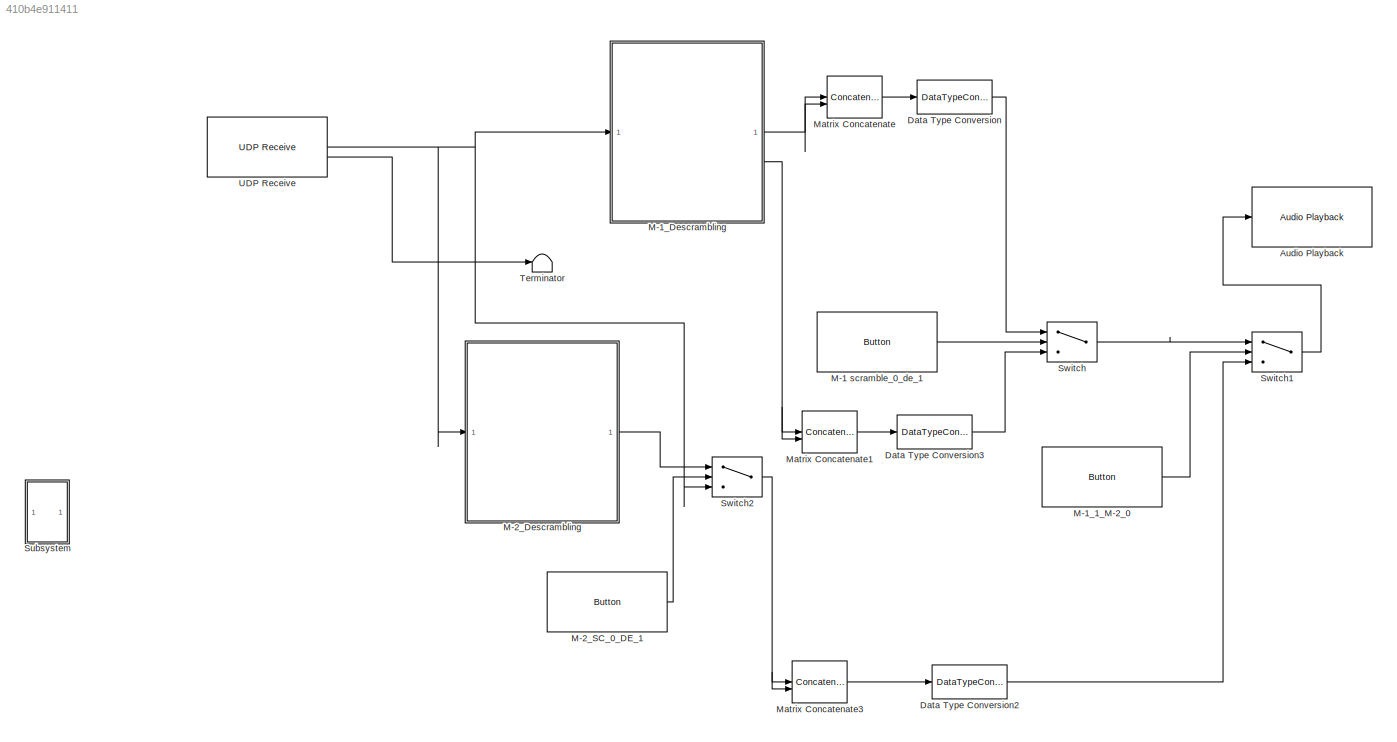
MODEL slx_410b4e911411
KIND model
CONFIG AbsTol = auto
CONFIG EnableMultiTasking = off
CONFIG FixedStep = auto
CONFIG MaxStep = auto
CONFIG MinStep = auto
CONFIG RelTol = 1e-3
CONFIG SampleTimeConstraint = Unconstrained
CONFIG SolverName = FixedStepAuto
CONFIG StartTime = 0.0
CONFIG StopTime = 10.0
BLOCK [Reference] Audio Playback  REF=androidaudiovideolib/Audio Playback
  SourceBlock = androidaudiovideolib/Audio Playback
  SourceType = codertarget.internal.androidAudioPlayback
BLOCK [DataTypeConversion] Data Type Conversion
  OutDataTypeStr = int16
  RndMeth = Floor
  SaturateOnIntegerOverflow = off
BLOCK [DataTypeConversion] Data Type Conversion2
  OutDataTypeStr = int16
  RndMeth = Floor
  SaturateOnIntegerOverflow = off
BLOCK [DataTypeConversion] Data Type Conversion3
  OutDataTypeStr = int16
  RndMeth = Floor
  SaturateOnIntegerOverflow = off
BLOCK [Reference] M-1 scramble_0_de_1  REF=androiduilib/Button
  SourceBlock = androiduilib/Button
  SourceType = codertarget.internal.androidButton
BLOCK [Reference] M-1_1_M-2_0  REF=androiduilib/Button
  SourceBlock = androiduilib/Button
  SourceType = codertarget.internal.androidButton
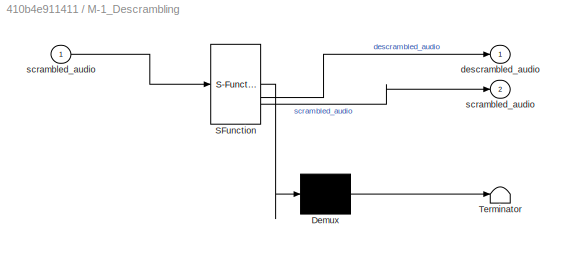
BLOCK [SubSystem] M-1_Descrambling
  ErrorFcn = Stateflow.Translate.translate
  LibrarySourceBlock = simulink/User-Defined\nFunctions/MATLAB Function
  PermitHierarchicalResolution = ExplicitOnly
  SFBlockType = MATLAB Function
  TreatAsAtomicUnit = on
BLOCK [Demux] M-1_Descrambling/ Demux 
  Outputs = 1
BLOCK [S-Function] M-1_Descrambling/ SFunction 
  EnableBusSupport = on
  FunctionName = sf_sfun
  PortCounts = [1 3]
  SFcnIsStateOwnerBlock = off
  SFunctionDeploymentMode = off
  Tag = Stateflow S-Function 2
BLOCK [Terminator] M-1_Descrambling/ Terminator 
BLOCK [Outport] M-1_Descrambling/descrambled_audio
BLOCK [Outport] M-1_Descrambling/scrambled_audio
  Port = 2
BLOCK [Inport] M-1_Descrambling/scrambled_audio 
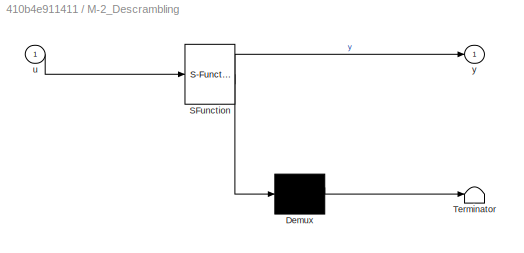
BLOCK [SubSystem] M-2_Descrambling
  ErrorFcn = Stateflow.Translate.translate
  LibrarySourceBlock = simulink/User-Defined\nFunctions/MATLAB Function
  PermitHierarchicalResolution = ExplicitOnly
  SFBlockType = MATLAB Function
  TreatAsAtomicUnit = on
BLOCK [Demux] M-2_Descrambling/ Demux 
  Outputs = 1
BLOCK [S-Function] M-2_Descrambling/ SFunction 
  EnableBusSupport = on
  FunctionName = sf_sfun
  PortCounts = [1 2]
  SFcnIsStateOwnerBlock = off
  SFunctionDeploymentMode = off
  Tag = Stateflow S-Function 1
BLOCK [Terminator] M-2_Descrambling/ Terminator 
BLOCK [Inport] M-2_Descrambling/u
BLOCK [Outport] M-2_Descrambling/y
BLOCK [Reference] M-2_SC_0_DE_1  REF=androiduilib/Button
  SourceBlock = androiduilib/Button
  SourceType = codertarget.internal.androidButton
BLOCK [Concatenate] Matrix Concatenate
  ConcatenateDimension = 2
  Mode = Multidimensional array
BLOCK [Concatenate] Matrix Concatenate1
  ConcatenateDimension = 2
  Mode = Multidimensional array
BLOCK [Concatenate] Matrix Concatenate3
  ConcatenateDimension = 2
  Mode = Multidimensional array
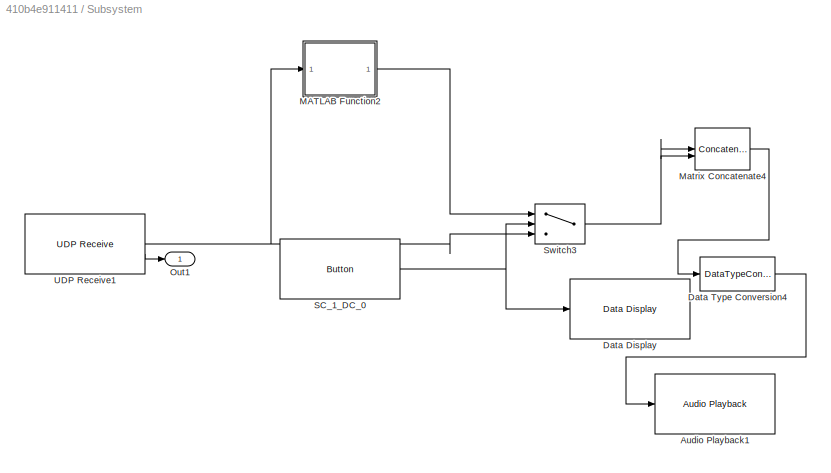
BLOCK [SubSystem] Subsystem
  Commented = on
BLOCK [Reference] Subsystem/Audio Playback1  REF=androidaudiovideolib/Audio Playback
  Commented = on
  SourceBlock = androidaudiovideolib/Audio Playback
  SourceType = codertarget.internal.androidAudioPlayback
BLOCK [Reference] Subsystem/Data Display  REF=androiduilib/Data Display
  Commented = on
  SourceBlock = androiduilib/Data Display
  SourceType = codertarget.internal.androidDataDisplay
BLOCK [DataTypeConversion] Subsystem/Data Type Conversion4
  Commented = on
  OutDataTypeStr = int16
  RndMeth = Floor
  SaturateOnIntegerOverflow = off
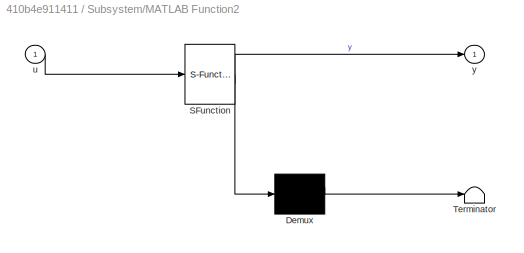
BLOCK [SubSystem] Subsystem/MATLAB Function2
  Commented = on
  ErrorFcn = Stateflow.Translate.translate
  LibrarySourceBlock = simulink/User-Defined\nFunctions/MATLAB Function
  PermitHierarchicalResolution = ExplicitOnly
  SFBlockType = MATLAB Function
  TreatAsAtomicUnit = on
BLOCK [Demux] Subsystem/MATLAB Function2/ Demux 
  Outputs = 1
BLOCK [S-Function] Subsystem/MATLAB Function2/ SFunction 
  EnableBusSupport = on
  FunctionName = sf_sfun
  PortCounts = [1 2]
  SFcnIsStateOwnerBlock = off
  SFunctionDeploymentMode = off
  Tag = Stateflow S-Function 3
BLOCK [Terminator] Subsystem/MATLAB Function2/ Terminator 
BLOCK [Inport] Subsystem/MATLAB Function2/u
BLOCK [Outport] Subsystem/MATLAB Function2/y
BLOCK [Concatenate] Subsystem/Matrix Concatenate4
  Commented = on
  ConcatenateDimension = 2
  Mode = Multidimensional array
BLOCK [Outport] Subsystem/Out1
BLOCK [Reference] Subsystem/SC_1_DC_0  REF=androiduilib/Button
  Commented = on
  SourceBlock = androiduilib/Button
  SourceType = codertarget.internal.androidButton
BLOCK [Switch] Subsystem/Switch3
  Commented = on
  Criteria = u2 > Threshold
  InputSameDT = off
  SaturateOnIntegerOverflow = off
BLOCK [Reference] Subsystem/UDP Receive1  REF=androidcommunicationlib/UDP Receive
  Commented = on
  SourceBlock = androidcommunicationlib/UDP Receive
  SourceType = UDP Receive
BLOCK [Switch] Switch
  Criteria = u2 > Threshold
  InputSameDT = off
  SaturateOnIntegerOverflow = off
BLOCK [Switch] Switch1
  Criteria = u2 > Threshold
  InputSameDT = off
  SaturateOnIntegerOverflow = off
BLOCK [Switch] Switch2
  Criteria = u2 > Threshold
  InputSameDT = off
  SaturateOnIntegerOverflow = off
BLOCK [Terminator] Terminator
BLOCK [Reference] UDP Receive  REF=androidcommunicationlib/UDP Receive
  SourceBlock = androidcommunicationlib/UDP Receive
  SourceType = UDP Receive
LINE Data Type Conversion2:1 -> Switch1:3
LINE Data Type Conversion3:1 -> Switch:3
LINE Data Type Conversion:1 -> Switch:1
LINE M-1 scramble_0_de_1:1 -> Switch:2
LINE M-1_1_M-2_0:1 -> Switch1:2
NET M-1_Descrambling:1 -> Matrix Concatenate:1, Matrix Concatenate:2
NET M-1_Descrambling:2 -> Matrix Concatenate1:1, Matrix Concatenate1:2
LINE M-2_Descrambling:1 -> Switch2:1
LINE M-2_SC_0_DE_1:1 -> Switch2:2
LINE Matrix Concatenate1:1 -> Data Type Conversion3:1
LINE Matrix Concatenate3:1 -> Data Type Conversion2:1
LINE Matrix Concatenate:1 -> Data Type Conversion:1
LINE Subsystem/Data Type Conversion4:1 -> Subsystem/Audio Playback1:1
LINE Subsystem/MATLAB Function2:1 -> Subsystem/Switch3:1
LINE Subsystem/Matrix Concatenate4:1 -> Subsystem/Data Type Conversion4:1
NET Subsystem/SC_1_DC_0:1 -> Subsystem/Data Display:1, Subsystem/Switch3:2
NET Subsystem/Switch3:1 -> Subsystem/Matrix Concatenate4:1, Subsystem/Matrix Concatenate4:2
NET Subsystem/UDP Receive1:1 -> Subsystem/MATLAB Function2:1, Subsystem/Switch3:3
LINE Subsystem/UDP Receive1:2 -> Subsystem/Out1:1
LINE Switch1:1 -> Audio Playback:1
NET Switch2:1 -> Matrix Concatenate3:1, Matrix Concatenate3:2
LINE Switch:1 -> Switch1:1
NET UDP Receive:1 -> M-1_Descrambling:1, M-2_Descrambling:1, Switch2:3
LINE UDP Receive:2 -> Terminator:1
note: NET lines group one-source signal fan-out (src -> all destinations, sorted); 1:1 wires keep LINE
CHART M-2_Descrambling states=1 transitions=1
  STATE_LABEL 'eML_blk_kernel()'
  STATE_LABEL 'SCRIPT:\nfunction y = descrambler(u)\n    % Extract the first channel of the input matrix (assuming u is Nx2)\n    u = u(:,1);\n\n    % Define the bucket size\n    bucketSize = 20;\n\n    % Perform FFT on the entire signal\n    fftResult = fft(u);\n    \n    % Number of buckets in the entire signal\n    numBuckets = floor(length(fftResult) / bucketSize);\n\n    % Subtract the exact noise added during scrambling...<+1477ch>'
CHART M-1_Descrambling states=1 transitions=1
  STATE_LABEL 'eML_blk_kernel()'
  STATE_LABEL 'SCRIPT:\nfunction [descrambled_audio,scrambled_audio] = descramble_freq(scrambled_audio)\n    % Descramble the scrambled audio input in the frequency domain using the same seed\n    % scrambled_audio: [nx2] scrambled audio array\n    % seed: The same integer seed used during scrambling\n    seed=123;\n    % Pre-allocate descrambled_audio array\n    descrambled_audio = zeros(size(scrambled_audio));\n\n    %...<+816ch>'
CHART Subsystem/MATLAB Function2 states=1 transitions=1
  STATE_LABEL 'eML_blk_kernel()'
  STATE_LABEL 'SCRIPT:\nfunction y = descrambler(u)\n    % Extract the first channel of the input matrix (assuming u is Nx2)\n    u = u(:,1);\n\n    % Define the bucket size\n    bucketSize = 20;\n\n    % Perform FFT on the entire signal\n    fftResult = fft(u);\n    \n    % Number of buckets in the entire signal\n    numBuckets = floor(length(fftResult) / bucketSize);\n\n    % Subtract the exact noise added during scrambling...<+1477ch>'
CHART  states=0 transitions=0
CHART  states=0 transitions=0
CHART  states=0 transitions=0
